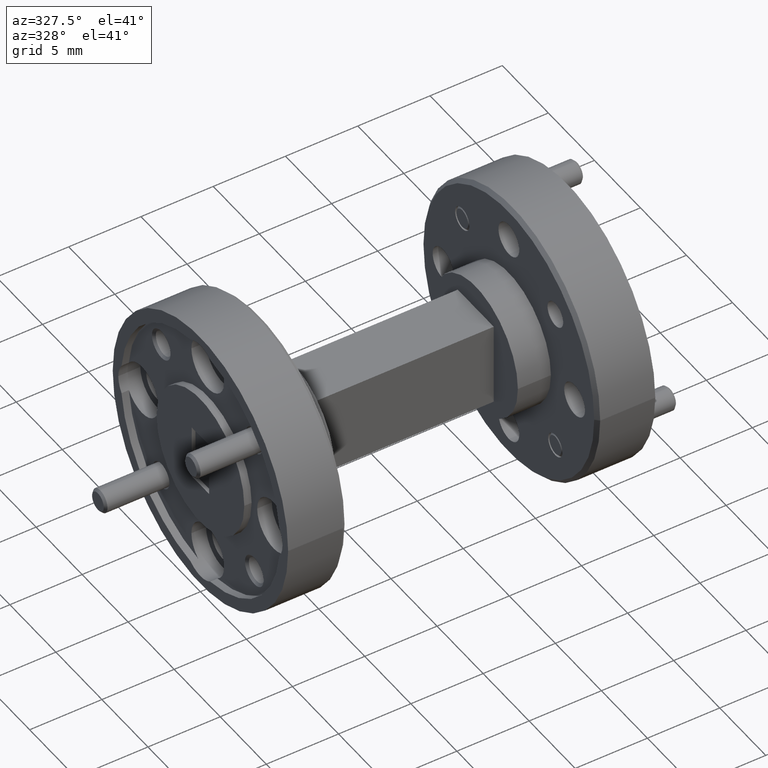
[diagram: clean part render]
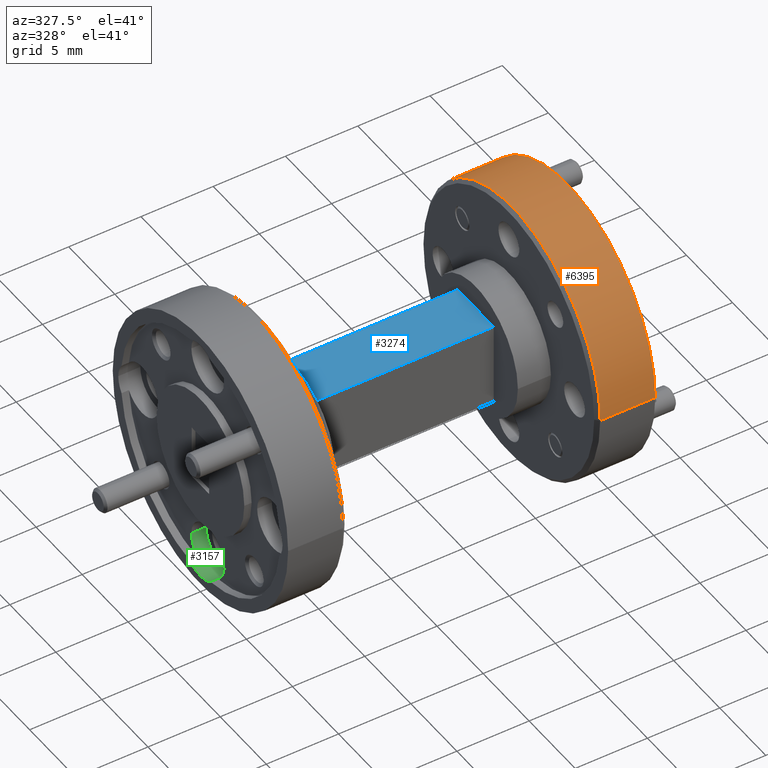
[diagram: same view with three faces highlighted in distinct colors, each labeled with its STEP entity id]
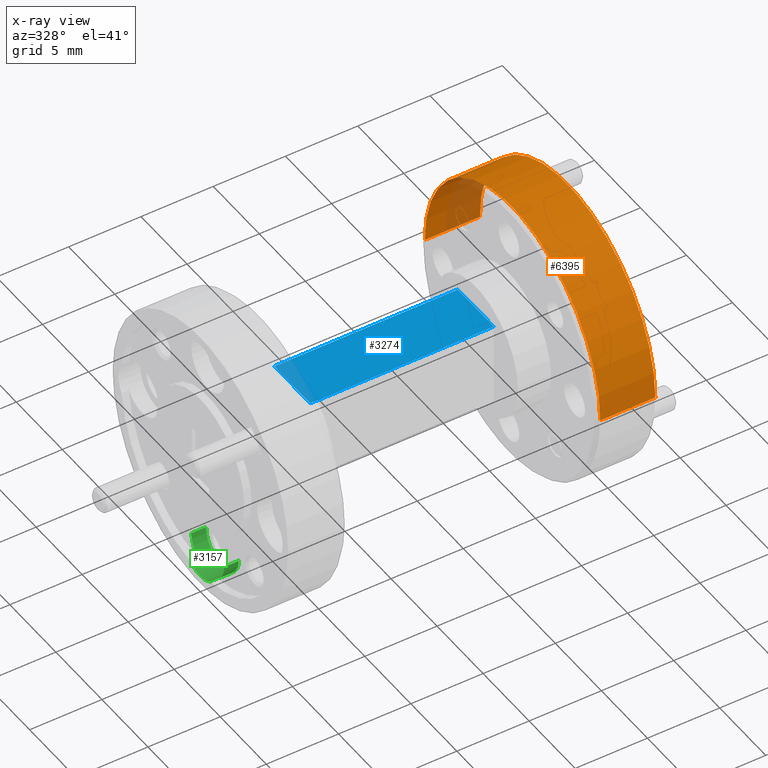
[diagram: x-ray of the same camera — body ghosted, the three highlighted faces saturated]
A machine part, auxiliary view with three faces highlighted in distinct colors.
The next image is the same camera in x-ray (body ghosted, the three faces saturated) — at least one of them is partly hidden behind the body in this view.
Their STEP definitions:

[orange] entity #6395 — the highlighted cylindrical surface (partial cylindrical patch) has radius 9.525 mm, axis along (1, 0, -0).
#74 = EDGE_CURVE ( 'NONE', #5506, #4931, #1387, .T. ) ;
#756 = DIRECTION ( 'NONE',  ( 1.000000000000000000, 1.224646799147353454E-16, -0.000000000000000000 ) ) ;
#1306 = LINE ( 'NONE', #3573, #6883 ) ;
#1387 = CIRCLE ( 'NONE', #2218, 0.3749999999999990563 ) ;
#1508 = DIRECTION ( 'NONE',  ( 1.000000000000000000, 1.224646799147352961E-16, -0.000000000000000000 ) ) ;
#1588 = DIRECTION ( 'NONE',  ( 1.000000000000000000, 1.224646799147353454E-16, -0.000000000000000000 ) ) ;
#1924 = DIRECTION ( 'NONE',  ( -1.224646799147022132E-16, 1.000000000000000000, 0.000000000000000000 ) ) ;
#2083 = VERTEX_POINT ( 'NONE', #6804 ) ;
#2218 = AXIS2_PLACEMENT_3D ( 'NONE', #5780, #2957, #6446 ) ;
#2957 = DIRECTION ( 'NONE',  ( 1.000000000000000000, 1.224646799147353454E-16, -0.000000000000000000 ) ) ;
#3078 = CARTESIAN_POINT ( 'NONE',  ( -1.862907434927846262E-13, -5.755786505608412837E-19, 0.000000000000000000 ) ) ;
#3573 = CARTESIAN_POINT ( 'NONE',  ( -1.862448192378166163E-13, -0.3749999999999991673, 4.592425496802563742E-17 ) ) ;
#3643 = DIRECTION ( 'NONE',  ( 1.000000000000000000, 1.224646799147353454E-16, -0.000000000000000000 ) ) ;
#3900 = VERTEX_POINT ( 'NONE', #5578 ) ;
#4103 = ORIENTED_EDGE ( 'NONE', *, *, #74, .F. ) ;
#4258 = CARTESIAN_POINT ( 'NONE',  ( 1.000000000000000000, 0.3749999999999992228, 0.000000000000000000 ) ) ;
#4342 = CARTESIAN_POINT ( 'NONE',  ( 1.000000000000000000, -0.3749999999999989453, 4.592425496802563125E-17 ) ) ;
#4357 = ORIENTED_EDGE ( 'NONE', *, *, #6940, .T. ) ;
#4931 = VERTEX_POINT ( 'NONE', #4342 ) ;
#4955 = CARTESIAN_POINT ( 'NONE',  ( 0.8500000000000001998, 1.035193992769870534E-16, 0.000000000000000000 ) ) ;
#5402 = EDGE_CURVE ( 'NONE', #2083, #4931, #1306, .T. ) ;
#5440 = DIRECTION ( 'NONE',  ( 0.000000000000000000, -1.000000000000000000, 0.000000000000000000 ) ) ;
#5506 = VERTEX_POINT ( 'NONE', #4258 ) ;
#5578 = CARTESIAN_POINT ( 'NONE',  ( 0.8500000000000001998, 0.3749999999999992784, 0.000000000000000000 ) ) ;
#5780 = CARTESIAN_POINT ( 'NONE',  ( 1.000000000000000000, 1.218891012641973109E-16, 0.000000000000000000 ) ) ;
#5823 = CIRCLE ( 'NONE', #5942, 0.3749999999999991673 ) ;
#5942 = AXIS2_PLACEMENT_3D ( 'NONE', #4955, #1508, #5440 ) ;
#6060 = FACE_OUTER_BOUND ( 'NONE', #6841, .T. ) ;
#6191 = VECTOR ( 'NONE', #1588, 39.37007874015748143 ) ;
#6293 = CYLINDRICAL_SURFACE ( 'NONE', #6407, 0.3749999999999991673 ) ;
#6395 = ADVANCED_FACE ( 'NONE', ( #6060 ), #6293, .T. ) ;
#6407 = AXIS2_PLACEMENT_3D ( 'NONE', #3078, #3643, #1924 ) ;
#6437 = ORIENTED_EDGE ( 'NONE', *, *, #5402, .T. ) ;
#6446 = DIRECTION ( 'NONE',  ( 0.000000000000000000, 1.000000000000000000, 0.000000000000000000 ) ) ;
#6591 = LINE ( 'NONE', #6670, #6191 ) ;
#6670 = CARTESIAN_POINT ( 'NONE',  ( -1.863366677477526361E-13, 0.3749999999999991673, 0.000000000000000000 ) ) ;
#6804 = CARTESIAN_POINT ( 'NONE',  ( 0.8500000000000001998, -0.3749999999999990008, 4.592425496802563742E-17 ) ) ;
#6841 = EDGE_LOOP ( 'NONE', ( #4357, #6437, #4103, #7280 ) ) ;
#6883 = VECTOR ( 'NONE', #756, 39.37007874015748143 ) ;
#6940 = EDGE_CURVE ( 'NONE', #3900, #2083, #5823, .T. ) ;
#6969 = EDGE_CURVE ( 'NONE', #3900, #5506, #6591, .T. ) ;
#7280 = ORIENTED_EDGE ( 'NONE', *, *, #6969, .F. ) ;

[blue] entity #3274 — the highlighted planar face has unit normal (-0, 0, -1).
#188 = CARTESIAN_POINT ( 'NONE',  ( 0.2500000000000000555, -0.07699999999999988798, 0.1139999999999999764 ) ) ;
#290 = EDGE_CURVE ( 'NONE', #5103, #660, #5662, .T. ) ;
#335 = CARTESIAN_POINT ( 'NONE',  ( 0.2500000000000000555, 0.07700000000000009615, 0.1139999999999999764 ) ) ;
#555 = EDGE_CURVE ( 'NONE', #660, #5498, #4898, .T. ) ;
#660 = VERTEX_POINT ( 'NONE', #4969 ) ;
#894 = AXIS2_PLACEMENT_3D ( 'NONE', #3522, #1000, #4590 ) ;
#1000 = DIRECTION ( 'NONE',  ( -1.365923996832132102E-16, 0.000000000000000000, -1.000000000000000000 ) ) ;
#1444 = CARTESIAN_POINT ( 'NONE',  ( 0.2500000000000000555, -0.07699999999999992961, 0.1139999999999999764 ) ) ;
#1692 = DIRECTION ( 'NONE',  ( -0.000000000000000000, 1.000000000000000000, -0.000000000000000000 ) ) ;
#2030 = DIRECTION ( 'NONE',  ( -1.000000000000000000, 0.000000000000000000, 1.365923996832132102E-16 ) ) ;
#2258 = PLANE ( 'NONE',  #894 ) ;
#3274 = ADVANCED_FACE ( 'NONE', ( #4077 ), #2258, .F. ) ;
#3355 = LINE ( 'NONE', #6111, #6049 ) ;
#3471 = LINE ( 'NONE', #1444, #5227 ) ;
#3522 = CARTESIAN_POINT ( 'NONE',  ( 0.2500000000000000555, -0.3749999999999997780, 0.1139999999999999764 ) ) ;
#3838 = CARTESIAN_POINT ( 'NONE',  ( 0.2500000000000000555, 0.07700000000000009615, 0.1139999999999999764 ) ) ;
#3880 = ORIENTED_EDGE ( 'NONE', *, *, #555, .T. ) ;
#4077 = FACE_OUTER_BOUND ( 'NONE', #5838, .T. ) ;
#4439 = VERTEX_POINT ( 'NONE', #188 ) ;
#4590 = DIRECTION ( 'NONE',  ( -1.000000000000000000, 0.000000000000000000, 1.365923996832132102E-16 ) ) ;
#4692 = CARTESIAN_POINT ( 'NONE',  ( 0.7499999999999998890, -0.07699999999999992961, 0.1139999999999999347 ) ) ;
#4898 = LINE ( 'NONE', #3838, #6621 ) ;
#4969 = CARTESIAN_POINT ( 'NONE',  ( 0.7499999999999998890, 0.07700000000000005451, 0.1139999999999998931 ) ) ;
#5103 = VERTEX_POINT ( 'NONE', #4692 ) ;
#5225 = EDGE_CURVE ( 'NONE', #4439, #5498, #3355, .T. ) ;
#5227 = VECTOR ( 'NONE', #5897, 39.37007874015748143 ) ;
#5498 = VERTEX_POINT ( 'NONE', #335 ) ;
#5662 = LINE ( 'NONE', #6135, #6995 ) ;
#5838 = EDGE_LOOP ( 'NONE', ( #6506, #6910, #6668, #3880 ) ) ;
#5897 = DIRECTION ( 'NONE',  ( 1.000000000000000000, 0.000000000000000000, -1.365923996832132102E-16 ) ) ;
#6049 = VECTOR ( 'NONE', #1692, 39.37007874015748143 ) ;
#6111 = CARTESIAN_POINT ( 'NONE',  ( 0.2500000000000000555, -0.3749999999999997780, 0.1139999999999999764 ) ) ;
#6135 = CARTESIAN_POINT ( 'NONE',  ( 0.7499999999999998890, -0.3749999999999997780, 0.1139999999999999208 ) ) ;
#6444 = EDGE_CURVE ( 'NONE', #4439, #5103, #3471, .T. ) ;
#6506 = ORIENTED_EDGE ( 'NONE', *, *, #5225, .F. ) ;
#6617 = DIRECTION ( 'NONE',  ( -0.000000000000000000, 1.000000000000000000, -0.000000000000000000 ) ) ;
#6621 = VECTOR ( 'NONE', #2030, 39.37007874015748143 ) ;
#6668 = ORIENTED_EDGE ( 'NONE', *, *, #290, .T. ) ;
#6910 = ORIENTED_EDGE ( 'NONE', *, *, #6444, .T. ) ;
#6995 = VECTOR ( 'NONE', #6617, 39.37007874015748143 ) ;

[green] entity #3157 — the highlighted cylindrical surface (edge-blend (fillet) strip) has radius 1.778 mm, axis along (-1, -0, -0).
#84 = FACE_OUTER_BOUND ( 'NONE', #6103, .T. ) ;
#156 = CARTESIAN_POINT ( 'NONE',  ( 0.03000000000000000583, 0.04176564826505183708, -0.3374249999999998084 ) ) ;
#179 = ORIENTED_EDGE ( 'NONE', *, *, #1285, .T. ) ;
#474 = CARTESIAN_POINT ( 'NONE',  ( 0.02000000000000009409, -0.04176564826505189953, -0.3374249999999996974 ) ) ;
#646 = VECTOR ( 'NONE', #6787, 39.37007874015748143 ) ;
#725 = DIRECTION ( 'NONE',  ( -1.000000000000000000, -1.224646799147353454E-16, 0.000000000000000000 ) ) ;
#914 = LINE ( 'NONE', #1913, #2999 ) ;
#943 = VERTEX_POINT ( 'NONE', #7284 ) ;
#1088 = DIRECTION ( 'NONE',  ( -1.000000000000000000, -1.224646799147353454E-16, 0.000000000000000000 ) ) ;
#1107 = CIRCLE ( 'NONE', #2522, 0.07000000000000002054 ) ;
#1266 = EDGE_CURVE ( 'NONE', #943, #7204, #3260, .T. ) ;
#1285 = EDGE_CURVE ( 'NONE', #4804, #6660, #4657, .T. ) ;
#1288 = EDGE_CURVE ( 'NONE', #7204, #4418, #1107, .T. ) ;
#1392 = CARTESIAN_POINT ( 'NONE',  ( 0.06000000000000001166, -0.06999999999999999278, -0.2812500000000000000 ) ) ;
#1481 = EDGE_CURVE ( 'NONE', #943, #4694, #3605, .T. ) ;
#1510 = ORIENTED_EDGE ( 'NONE', *, *, #4406, .T. ) ;
#1661 = DIRECTION ( 'NONE',  ( -1.000000000000000000, -1.224646799147353454E-16, 0.000000000000000000 ) ) ;
#1781 = DIRECTION ( 'NONE',  ( 1.219574997171545833E-16, -1.000000000000000000, 0.000000000000000000 ) ) ;
#1913 = CARTESIAN_POINT ( 'NONE',  ( 0.06000000000000001166, -0.06999999999999999278, -0.2812500000000000000 ) ) ;
#2047 = AXIS2_PLACEMENT_3D ( 'NONE', #7275, #1661, #2744 ) ;
#2087 = ORIENTED_EDGE ( 'NONE', *, *, #1266, .T. ) ;
#2167 = CARTESIAN_POINT ( 'NONE',  ( 0.05999999999999999084, 0.07000000000000004829, -0.2812500000000000000 ) ) ;
#2246 = DIRECTION ( 'NONE',  ( 1.219574997171545833E-16, -1.000000000000000000, 0.000000000000000000 ) ) ;
#2274 = EDGE_CURVE ( 'NONE', #4694, #5446, #914, .T. ) ;
#2321 = CARTESIAN_POINT ( 'NONE',  ( 0.05999999999999999778, 2.147560056336193393E-17, -0.2812500000000000000 ) ) ;
#2522 = AXIS2_PLACEMENT_3D ( 'NONE', #4428, #1088, #2246 ) ;
#2624 = CARTESIAN_POINT ( 'NONE',  ( 0.02000000000000005246, 0.04176564826505173994, -0.3374249999999996974 ) ) ;
#2744 = DIRECTION ( 'NONE',  ( -1.224646799147353454E-16, 1.000000000000000000, 0.000000000000000000 ) ) ;
#2895 = DIRECTION ( 'NONE',  ( -1.219574997171545833E-16, 1.000000000000000000, 0.000000000000000000 ) ) ;
#2921 = LINE ( 'NONE', #156, #7132 ) ;
#2958 = AXIS2_PLACEMENT_3D ( 'NONE', #3534, #5101, #4640 ) ;
#2999 = VECTOR ( 'NONE', #3184, 39.37007874015748143 ) ;
#3009 = LINE ( 'NONE', #4711, #5815 ) ;
#3029 = ORIENTED_EDGE ( 'NONE', *, *, #2274, .F. ) ;
#3157 = ADVANCED_FACE ( 'NONE', ( #84 ), #3504, .F. ) ;
#3184 = DIRECTION ( 'NONE',  ( -1.000000000000000000, -1.224646799147353700E-16, -0.000000000000000000 ) ) ;
#3260 = LINE ( 'NONE', #2167, #646 ) ;
#3434 = CARTESIAN_POINT ( 'NONE',  ( 3.692334590940298015E-17, 0.04176564826505173994, -0.3374249999999996974 ) ) ;
#3504 = CYLINDRICAL_SURFACE ( 'NONE', #6842, 0.07000000000000002054 ) ;
#3534 = CARTESIAN_POINT ( 'NONE',  ( 0.02000000000000005940, 1.657701336677252579E-17, -0.2812500000000000000 ) ) ;
#3605 = CIRCLE ( 'NONE', #7290, 0.07000000000000002054 ) ;
#3775 = ORIENTED_EDGE ( 'NONE', *, *, #5336, .T. ) ;
#3784 = ORIENTED_EDGE ( 'NONE', *, *, #1288, .T. ) ;
#3853 = VERTEX_POINT ( 'NONE', #474 ) ;
#4190 = CARTESIAN_POINT ( 'NONE',  ( 0.05999999999999999778, 2.147560056336193393E-17, -0.2812500000000000000 ) ) ;
#4406 = EDGE_CURVE ( 'NONE', #6660, #3853, #3009, .T. ) ;
#4418 = VERTEX_POINT ( 'NONE', #2624 ) ;
#4428 = CARTESIAN_POINT ( 'NONE',  ( 0.02000000000000005940, 1.657701336677252579E-17, -0.2812500000000000000 ) ) ;
#4489 = CIRCLE ( 'NONE', #2958, 0.07000000000000002054 ) ;
#4566 = DIRECTION ( 'NONE',  ( -1.000000000000000000, -1.224646799147353700E-16, -0.000000000000000000 ) ) ;
#4640 = DIRECTION ( 'NONE',  ( 1.219574997171545833E-16, -1.000000000000000000, 0.000000000000000000 ) ) ;
#4657 = CIRCLE ( 'NONE', #2047, 0.07000000000000002054 ) ;
#4694 = VERTEX_POINT ( 'NONE', #1392 ) ;
#4711 = CARTESIAN_POINT ( 'NONE',  ( 0.03000000000000001277, -0.04176564826505180239, -0.3374249999999998084 ) ) ;
#4714 = DIRECTION ( 'NONE',  ( -1.000000000000000000, -1.224646799147353700E-16, -0.000000000000000000 ) ) ;
#4804 = VERTEX_POINT ( 'NONE', #3434 ) ;
#5101 = DIRECTION ( 'NONE',  ( -1.000000000000000000, -1.224646799147353454E-16, 0.000000000000000000 ) ) ;
#5249 = EDGE_CURVE ( 'NONE', #4418, #4804, #2921, .T. ) ;
#5302 = CARTESIAN_POINT ( 'NONE',  ( 5.114816746210991523E-18, -0.04176564826505178851, -0.3374249999999998084 ) ) ;
#5336 = EDGE_CURVE ( 'NONE', #3853, #5446, #4489, .T. ) ;
#5446 = VERTEX_POINT ( 'NONE', #6027 ) ;
#5625 = ORIENTED_EDGE ( 'NONE', *, *, #1481, .F. ) ;
#5815 = VECTOR ( 'NONE', #7246, 39.37007874015748143 ) ;
#6027 = CARTESIAN_POINT ( 'NONE',  ( 0.02000000000000006981, -0.07000000000000000666, -0.2812500000000000000 ) ) ;
#6103 = EDGE_LOOP ( 'NONE', ( #5625, #2087, #3784, #6823, #179, #1510, #3775, #3029 ) ) ;
#6660 = VERTEX_POINT ( 'NONE', #5302 ) ;
#6787 = DIRECTION ( 'NONE',  ( -1.000000000000000000, -1.224646799147353700E-16, -0.000000000000000000 ) ) ;
#6823 = ORIENTED_EDGE ( 'NONE', *, *, #5249, .T. ) ;
#6842 = AXIS2_PLACEMENT_3D ( 'NONE', #4190, #4714, #1781 ) ;
#7132 = VECTOR ( 'NONE', #4566, 39.37007874015748143 ) ;
#7204 = VERTEX_POINT ( 'NONE', #7333 ) ;
#7246 = DIRECTION ( 'NONE',  ( 1.000000000000000000, 1.224646799147353700E-16, 0.000000000000000000 ) ) ;
#7275 = CARTESIAN_POINT ( 'NONE',  ( 0.000000000000000000, 1.412771976847780939E-17, -0.2812500000000000000 ) ) ;
#7284 = CARTESIAN_POINT ( 'NONE',  ( 0.05999999999999999084, 0.07000000000000006217, -0.2812500000000000000 ) ) ;
#7290 = AXIS2_PLACEMENT_3D ( 'NONE', #2321, #725, #2895 ) ;
#7333 = CARTESIAN_POINT ( 'NONE',  ( 0.02000000000000005246, 0.07000000000000003442, -0.2812500000000000000 ) ) ;